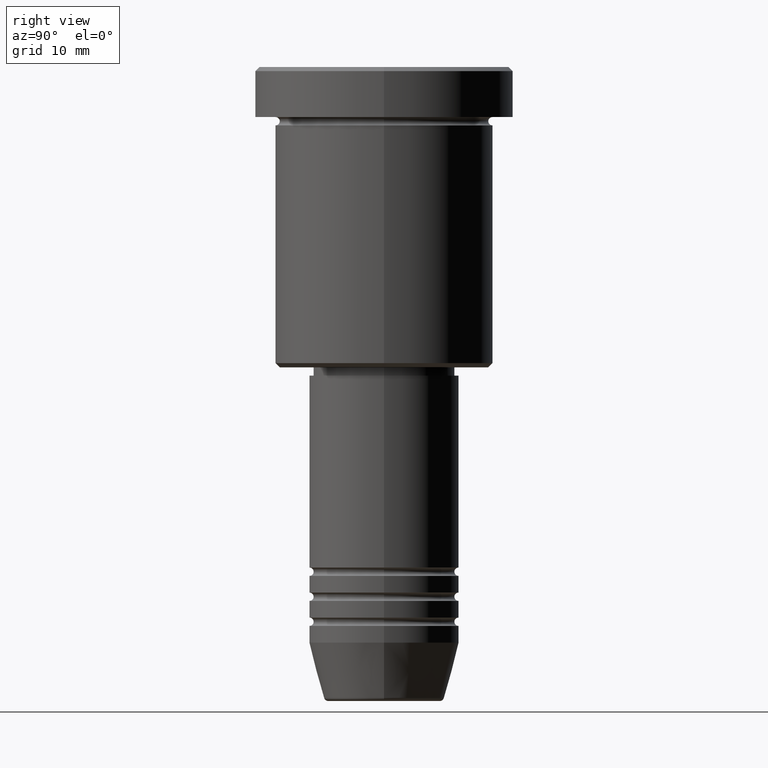
[diagram: clean part render]
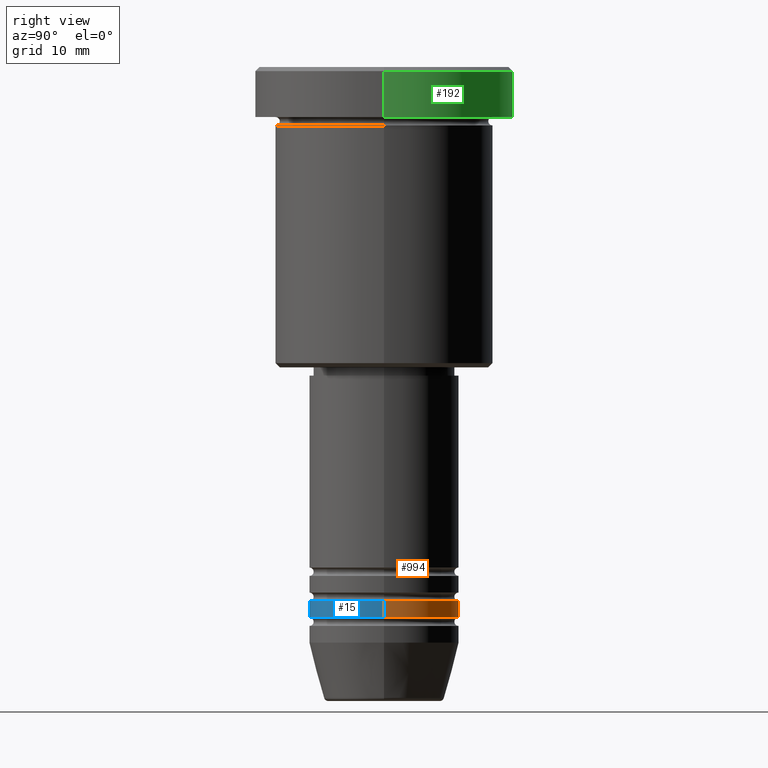
[diagram: same view with three faces highlighted in distinct colors, each labeled with its STEP entity id]
A machine part, right view with three faces highlighted in distinct colors.
Their STEP definitions:

[orange] entity #994 — the highlighted cylindrical surface (partial cylindrical patch) has radius 9 mm, axis along (-0, -0, 1).
#19 = DIRECTION ( 'NONE',  ( -0.000000000000000000, -0.000000000000000000, 1.000000000000000000 ) ) ;
#24 = LINE ( 'NONE', #857, #286 ) ;
#44 = DIRECTION ( 'NONE',  ( -0.000000000000000000, -0.000000000000000000, 1.000000000000000000 ) ) ;
#57 = DIRECTION ( 'NONE',  ( 1.000000000000000000, 0.000000000000000000, 0.000000000000000000 ) ) ;
#117 = CARTESIAN_POINT ( 'NONE',  ( 0.000000000000000000, 0.000000000000000000, -65.99999999999998579 ) ) ;
#137 = VERTEX_POINT ( 'NONE', #205 ) ;
#188 = EDGE_LOOP ( 'NONE', ( #1109, #474, #222, #845 ) ) ;
#205 = CARTESIAN_POINT ( 'NONE',  ( 9.000000000000000000, 0.000000000000000000, -63.99999999999998579 ) ) ;
#221 = DIRECTION ( 'NONE',  ( -0.000000000000000000, -0.000000000000000000, 1.000000000000000000 ) ) ;
#222 = ORIENTED_EDGE ( 'NONE', *, *, #755, .F. ) ;
#243 = AXIS2_PLACEMENT_3D ( 'NONE', #117, #19, #408 ) ;
#277 = CARTESIAN_POINT ( 'NONE',  ( 0.000000000000000000, 0.000000000000000000, -63.99999999999998579 ) ) ;
#286 = VECTOR ( 'NONE', #221, 1000.000000000000000 ) ;
#287 = VERTEX_POINT ( 'NONE', #746 ) ;
#347 = DIRECTION ( 'NONE',  ( 1.000000000000000000, 0.000000000000000000, 0.000000000000000000 ) ) ;
#364 = AXIS2_PLACEMENT_3D ( 'NONE', #781, #44, #57 ) ;
#408 = DIRECTION ( 'NONE',  ( 1.000000000000000000, 0.000000000000000000, 0.000000000000000000 ) ) ;
#435 = CARTESIAN_POINT ( 'NONE',  ( -9.000000000000000000, 1.102182119232617714E-15, -63.99999999999998579 ) ) ;
#474 = ORIENTED_EDGE ( 'NONE', *, *, #1066, .T. ) ;
#496 = CYLINDRICAL_SURFACE ( 'NONE', #364, 9.000000000000000000 ) ;
#505 = EDGE_CURVE ( 'NONE', #287, #931, #925, .T. ) ;
#508 = CARTESIAN_POINT ( 'NONE',  ( -9.000000000000000000, 1.102182119232617714E-15, 0.000000000000000000 ) ) ;
#576 = CARTESIAN_POINT ( 'NONE',  ( -9.000000000000000000, 1.102182119232617714E-15, -65.99999999999998579 ) ) ;
#577 = CIRCLE ( 'NONE', #928, 9.000000000000000000 ) ;
#586 = EDGE_CURVE ( 'NONE', #287, #137, #24, .T. ) ;
#596 = VERTEX_POINT ( 'NONE', #435 ) ;
#746 = CARTESIAN_POINT ( 'NONE',  ( 9.000000000000000000, 0.000000000000000000, -65.99999999999998579 ) ) ;
#755 = EDGE_CURVE ( 'NONE', #137, #596, #577, .T. ) ;
#772 = VECTOR ( 'NONE', #953, 1000.000000000000000 ) ;
#781 = CARTESIAN_POINT ( 'NONE',  ( 0.000000000000000000, 0.000000000000000000, 0.000000000000000000 ) ) ;
#836 = FACE_OUTER_BOUND ( 'NONE', #188, .T. ) ;
#845 = ORIENTED_EDGE ( 'NONE', *, *, #586, .F. ) ;
#854 = LINE ( 'NONE', #508, #772 ) ;
#857 = CARTESIAN_POINT ( 'NONE',  ( 9.000000000000000000, 0.000000000000000000, 0.000000000000000000 ) ) ;
#925 = CIRCLE ( 'NONE', #243, 9.000000000000000000 ) ;
#928 = AXIS2_PLACEMENT_3D ( 'NONE', #277, #1063, #347 ) ;
#931 = VERTEX_POINT ( 'NONE', #576 ) ;
#953 = DIRECTION ( 'NONE',  ( -0.000000000000000000, -0.000000000000000000, 1.000000000000000000 ) ) ;
#994 = ADVANCED_FACE ( 'NONE', ( #836 ), #496, .T. ) ;
#1063 = DIRECTION ( 'NONE',  ( -0.000000000000000000, -0.000000000000000000, 1.000000000000000000 ) ) ;
#1066 = EDGE_CURVE ( 'NONE', #931, #596, #854, .T. ) ;
#1109 = ORIENTED_EDGE ( 'NONE', *, *, #505, .T. ) ;

[blue] entity #15 — the highlighted cylindrical surface (partial cylindrical patch) has radius 9 mm, axis along (-0, -0, 1).
#15 = ADVANCED_FACE ( 'NONE', ( #458 ), #548, .T. ) ;
#24 = LINE ( 'NONE', #857, #286 ) ;
#56 = ORIENTED_EDGE ( 'NONE', *, *, #142, .F. ) ;
#126 = CARTESIAN_POINT ( 'NONE',  ( 0.000000000000000000, 0.000000000000000000, -63.99999999999998579 ) ) ;
#137 = VERTEX_POINT ( 'NONE', #205 ) ;
#142 = EDGE_CURVE ( 'NONE', #596, #137, #146, .T. ) ;
#146 = CIRCLE ( 'NONE', #400, 9.000000000000000000 ) ;
#163 = CIRCLE ( 'NONE', #837, 9.000000000000000000 ) ;
#205 = CARTESIAN_POINT ( 'NONE',  ( 9.000000000000000000, 0.000000000000000000, -63.99999999999998579 ) ) ;
#221 = DIRECTION ( 'NONE',  ( -0.000000000000000000, -0.000000000000000000, 1.000000000000000000 ) ) ;
#236 = EDGE_CURVE ( 'NONE', #931, #287, #163, .T. ) ;
#286 = VECTOR ( 'NONE', #221, 1000.000000000000000 ) ;
#287 = VERTEX_POINT ( 'NONE', #746 ) ;
#314 = DIRECTION ( 'NONE',  ( -0.000000000000000000, -0.000000000000000000, 1.000000000000000000 ) ) ;
#352 = DIRECTION ( 'NONE',  ( -0.000000000000000000, -0.000000000000000000, 1.000000000000000000 ) ) ;
#386 = DIRECTION ( 'NONE',  ( 1.000000000000000000, 0.000000000000000000, 0.000000000000000000 ) ) ;
#400 = AXIS2_PLACEMENT_3D ( 'NONE', #126, #352, #830 ) ;
#435 = CARTESIAN_POINT ( 'NONE',  ( -9.000000000000000000, 1.102182119232617714E-15, -63.99999999999998579 ) ) ;
#458 = FACE_OUTER_BOUND ( 'NONE', #663, .T. ) ;
#508 = CARTESIAN_POINT ( 'NONE',  ( -9.000000000000000000, 1.102182119232617714E-15, 0.000000000000000000 ) ) ;
#548 = CYLINDRICAL_SURFACE ( 'NONE', #1073, 9.000000000000000000 ) ;
#576 = CARTESIAN_POINT ( 'NONE',  ( -9.000000000000000000, 1.102182119232617714E-15, -65.99999999999998579 ) ) ;
#586 = EDGE_CURVE ( 'NONE', #287, #137, #24, .T. ) ;
#596 = VERTEX_POINT ( 'NONE', #435 ) ;
#662 = CARTESIAN_POINT ( 'NONE',  ( 0.000000000000000000, 0.000000000000000000, -65.99999999999998579 ) ) ;
#663 = EDGE_LOOP ( 'NONE', ( #1027, #886, #804, #56 ) ) ;
#746 = CARTESIAN_POINT ( 'NONE',  ( 9.000000000000000000, 0.000000000000000000, -65.99999999999998579 ) ) ;
#772 = VECTOR ( 'NONE', #953, 1000.000000000000000 ) ;
#804 = ORIENTED_EDGE ( 'NONE', *, *, #586, .T. ) ;
#821 = CARTESIAN_POINT ( 'NONE',  ( 0.000000000000000000, 0.000000000000000000, 0.000000000000000000 ) ) ;
#830 = DIRECTION ( 'NONE',  ( 1.000000000000000000, 0.000000000000000000, 0.000000000000000000 ) ) ;
#837 = AXIS2_PLACEMENT_3D ( 'NONE', #662, #314, #386 ) ;
#854 = LINE ( 'NONE', #508, #772 ) ;
#857 = CARTESIAN_POINT ( 'NONE',  ( 9.000000000000000000, 0.000000000000000000, 0.000000000000000000 ) ) ;
#886 = ORIENTED_EDGE ( 'NONE', *, *, #236, .T. ) ;
#931 = VERTEX_POINT ( 'NONE', #576 ) ;
#953 = DIRECTION ( 'NONE',  ( -0.000000000000000000, -0.000000000000000000, 1.000000000000000000 ) ) ;
#983 = DIRECTION ( 'NONE',  ( -0.000000000000000000, -0.000000000000000000, 1.000000000000000000 ) ) ;
#995 = DIRECTION ( 'NONE',  ( 1.000000000000000000, 0.000000000000000000, 0.000000000000000000 ) ) ;
#1027 = ORIENTED_EDGE ( 'NONE', *, *, #1066, .F. ) ;
#1066 = EDGE_CURVE ( 'NONE', #931, #596, #854, .T. ) ;
#1073 = AXIS2_PLACEMENT_3D ( 'NONE', #821, #983, #995 ) ;

[green] entity #192 — the highlighted cylindrical surface (partial cylindrical patch) has radius 15.5 mm, axis along (-0, -0, 1).
#8 = VERTEX_POINT ( 'NONE', #96 ) ;
#23 = DIRECTION ( 'NONE',  ( -0.000000000000000000, -0.000000000000000000, 1.000000000000000000 ) ) ;
#96 = CARTESIAN_POINT ( 'NONE',  ( 15.50000000000000000, 0.000000000000000000, -5.999999999999995559 ) ) ;
#99 = CARTESIAN_POINT ( 'NONE',  ( 0.000000000000000000, 0.000000000000000000, 0.000000000000000000 ) ) ;
#104 = EDGE_CURVE ( 'NONE', #8, #511, #684, .T. ) ;
#108 = VERTEX_POINT ( 'NONE', #396 ) ;
#192 = ADVANCED_FACE ( 'NONE', ( #375 ), #1094, .T. ) ;
#256 = ORIENTED_EDGE ( 'NONE', *, *, #104, .F. ) ;
#271 = DIRECTION ( 'NONE',  ( 1.000000000000000000, 0.000000000000000000, 0.000000000000000000 ) ) ;
#296 = VERTEX_POINT ( 'NONE', #1067 ) ;
#340 = CARTESIAN_POINT ( 'NONE',  ( 0.000000000000000000, 0.000000000000000000, -0.4999999999999987232 ) ) ;
#351 = DIRECTION ( 'NONE',  ( -0.000000000000000000, -0.000000000000000000, 1.000000000000000000 ) ) ;
#355 = ORIENTED_EDGE ( 'NONE', *, *, #610, .T. ) ;
#366 = DIRECTION ( 'NONE',  ( -0.000000000000000000, -0.000000000000000000, 1.000000000000000000 ) ) ;
#375 = FACE_OUTER_BOUND ( 'NONE', #794, .T. ) ;
#396 = CARTESIAN_POINT ( 'NONE',  ( -15.50000000000000000, 1.898202538678397557E-15, -0.4999999999999987232 ) ) ;
#469 = DIRECTION ( 'NONE',  ( -0.000000000000000000, -0.000000000000000000, 1.000000000000000000 ) ) ;
#511 = VERTEX_POINT ( 'NONE', #681 ) ;
#513 = VECTOR ( 'NONE', #366, 1000.000000000000000 ) ;
#514 = CIRCLE ( 'NONE', #636, 15.50000000000000000 ) ;
#522 = ORIENTED_EDGE ( 'NONE', *, *, #807, .T. ) ;
#542 = CARTESIAN_POINT ( 'NONE',  ( 0.000000000000000000, 0.000000000000000000, -5.999999999999995559 ) ) ;
#555 = AXIS2_PLACEMENT_3D ( 'NONE', #340, #706, #271 ) ;
#566 = CARTESIAN_POINT ( 'NONE',  ( 15.50000000000000000, 0.000000000000000000, 0.000000000000000000 ) ) ;
#610 = EDGE_CURVE ( 'NONE', #296, #108, #654, .T. ) ;
#636 = AXIS2_PLACEMENT_3D ( 'NONE', #542, #351, #800 ) ;
#654 = LINE ( 'NONE', #914, #513 ) ;
#674 = VECTOR ( 'NONE', #23, 1000.000000000000000 ) ;
#681 = CARTESIAN_POINT ( 'NONE',  ( 15.50000000000000000, 0.000000000000000000, -0.4999999999999987232 ) ) ;
#684 = LINE ( 'NONE', #566, #674 ) ;
#692 = ORIENTED_EDGE ( 'NONE', *, *, #831, .T. ) ;
#695 = CIRCLE ( 'NONE', #555, 15.50000000000000000 ) ;
#706 = DIRECTION ( 'NONE',  ( 0.000000000000000000, 0.000000000000000000, -1.000000000000000000 ) ) ;
#794 = EDGE_LOOP ( 'NONE', ( #692, #355, #522, #256 ) ) ;
#800 = DIRECTION ( 'NONE',  ( 1.000000000000000000, 0.000000000000000000, 0.000000000000000000 ) ) ;
#807 = EDGE_CURVE ( 'NONE', #108, #511, #695, .T. ) ;
#831 = EDGE_CURVE ( 'NONE', #8, #296, #514, .T. ) ;
#914 = CARTESIAN_POINT ( 'NONE',  ( -15.50000000000000000, 1.898202538678397557E-15, 0.000000000000000000 ) ) ;
#1067 = CARTESIAN_POINT ( 'NONE',  ( -15.50000000000000000, 1.898202538678397557E-15, -5.999999999999995559 ) ) ;
#1069 = DIRECTION ( 'NONE',  ( 1.000000000000000000, 0.000000000000000000, 0.000000000000000000 ) ) ;
#1094 = CYLINDRICAL_SURFACE ( 'NONE', #1113, 15.50000000000000000 ) ;
#1113 = AXIS2_PLACEMENT_3D ( 'NONE', #99, #469, #1069 ) ;